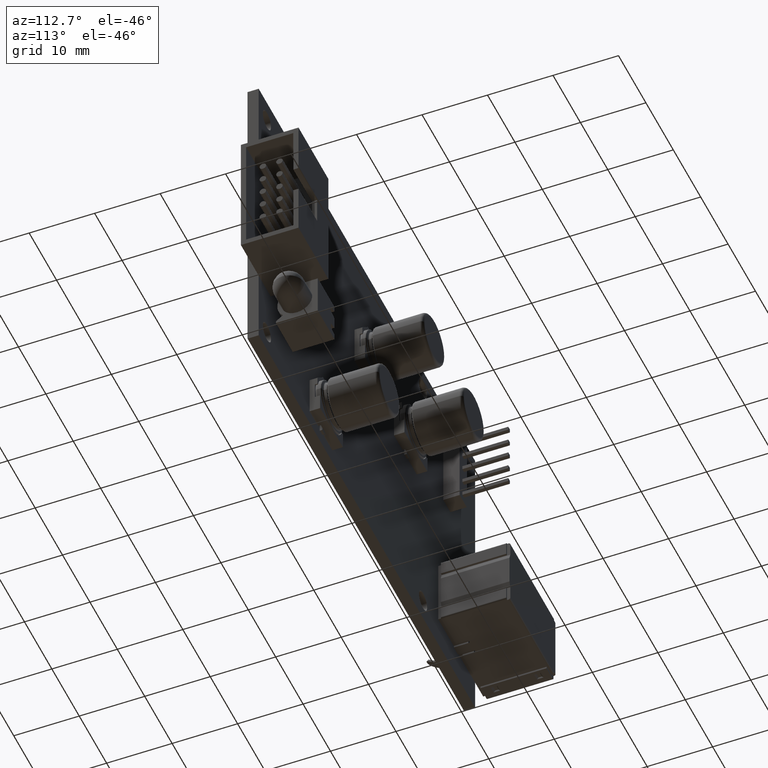
[diagram: clean part render]
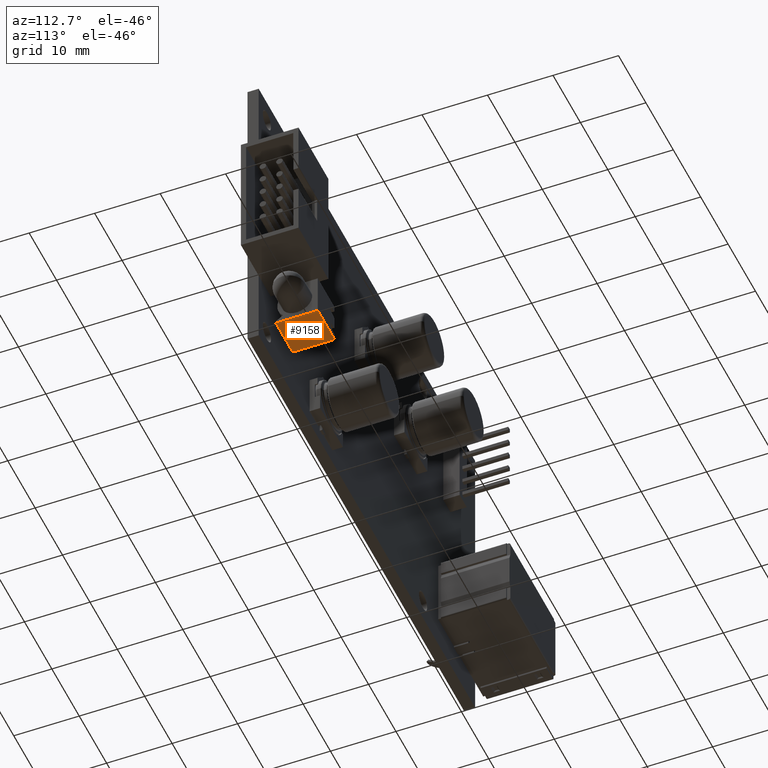
[diagram: same view with one face highlighted and labeled with its STEP entity id]
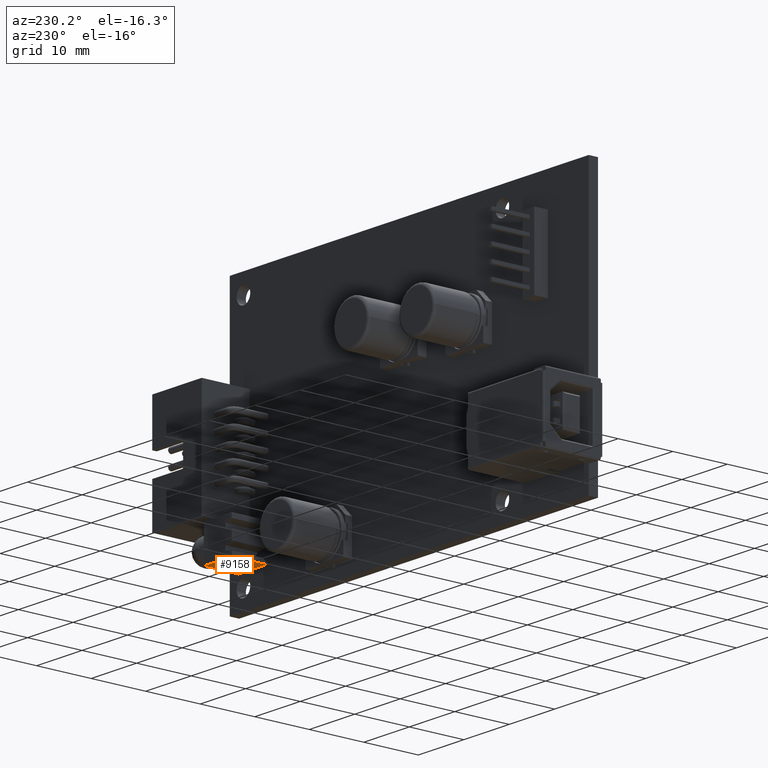
[diagram: same view with one face highlighted and labeled with its STEP entity id]
A machine part, auxiliary view. The second image highlights one B-rep face of the part: STEP entity #9158.
A second angle (auxiliary view) of the same face is appended — the face is thin or edge-on in the first view.
In plain terms, the highlighted planar face has unit normal (0, -0, 1).
Its self-contained STEP definition (entity closure, byte-faithful):
#138 = VECTOR ( 'NONE', #15478, 1000.000000000000000 ) ;
#750 = VECTOR ( 'NONE', #15581, 1000.000000000000000 ) ;
#1243 = AXIS2_PLACEMENT_3D ( 'NONE', #1448, #10468, #15446 ) ;
#1448 = CARTESIAN_POINT ( 'NONE',  ( 34.26324033284385700, 9.126700930004711100, -44.75000000001047300 ) ) ;
#2867 = VERTEX_POINT ( 'NONE', #3674 ) ;
#3674 = CARTESIAN_POINT ( 'NONE',  ( 34.26324033284385700, 9.126700930004711100, -44.75000000001047300 ) ) ;
#4023 = ORIENTED_EDGE ( 'NONE', *, *, #13991, .F. ) ;
#4156 = CARTESIAN_POINT ( 'NONE',  ( 28.11324033284386200, 2.726700930004710700, -44.75000000001046600 ) ) ;
#4315 = VECTOR ( 'NONE', #5310, 1000.000000000000000 ) ;
#4572 = CARTESIAN_POINT ( 'NONE',  ( 28.11324033284385800, 9.126700930004709300, -44.75000000001047300 ) ) ;
#4901 = LINE ( 'NONE', #5410, #4315 ) ;
#5310 = DIRECTION ( 'NONE',  ( -1.355252715606880500E-016, 1.000000000000000000, 6.776263578034402700E-017 ) ) ;
#5410 = CARTESIAN_POINT ( 'NONE',  ( 34.26324033284385700, 9.126700930004711100, -44.75000000001047300 ) ) ;
#5620 = DIRECTION ( 'NONE',  ( -1.000000000000000000, -1.355252715606880500E-016, -0.0000000000000000000 ) ) ;
#5733 = FACE_OUTER_BOUND ( 'NONE', #15911, .T. ) ;
#6472 = VECTOR ( 'NONE', #5620, 1000.000000000000000 ) ;
#6823 = VERTEX_POINT ( 'NONE', #4156 ) ;
#6872 = LINE ( 'NONE', #8264, #6472 ) ;
#6913 = LINE ( 'NONE', #15367, #138 ) ;
#8264 = CARTESIAN_POINT ( 'NONE',  ( 34.26324033284386400, 2.726700930004711600, -44.75000000001046600 ) ) ;
#9158 = ADVANCED_FACE ( 'NONE', ( #5733 ), #11715, .F. ) ;
#9356 = LINE ( 'NONE', #14266, #750 ) ;
#9879 = EDGE_CURVE ( 'NONE', #2867, #15700, #9356, .T. ) ;
#10468 = DIRECTION ( 'NONE',  ( 9.183549615799121200E-033, -6.776263578034402700E-017, 1.000000000000000000 ) ) ;
#11715 = PLANE ( 'NONE',  #1243 ) ;
#12362 = ORIENTED_EDGE ( 'NONE', *, *, #14565, .T. ) ;
#12469 = EDGE_CURVE ( 'NONE', #12744, #6823, #6872, .T. ) ;
#12744 = VERTEX_POINT ( 'NONE', #15126 ) ;
#12902 = ORIENTED_EDGE ( 'NONE', *, *, #12469, .T. ) ;
#13991 = EDGE_CURVE ( 'NONE', #12744, #2867, #4901, .T. ) ;
#14266 = CARTESIAN_POINT ( 'NONE',  ( 34.26324033284385700, 9.126700930004711100, -44.75000000001047300 ) ) ;
#14565 = EDGE_CURVE ( 'NONE', #6823, #15700, #6913, .T. ) ;
#15126 = CARTESIAN_POINT ( 'NONE',  ( 34.26324033284386400, 2.726700930004711600, -44.75000000001046600 ) ) ;
#15367 = CARTESIAN_POINT ( 'NONE',  ( 28.11324033284385800, 9.126700930004709300, -44.75000000001047300 ) ) ;
#15446 = DIRECTION ( 'NONE',  ( 1.355252715606880500E-016, -1.000000000000000000, -6.776263578034402700E-017 ) ) ;
#15478 = DIRECTION ( 'NONE',  ( -1.355252715606880500E-016, 1.000000000000000000, 6.776263578034402700E-017 ) ) ;
#15581 = DIRECTION ( 'NONE',  ( -1.000000000000000000, -1.355252715606880500E-016, -0.0000000000000000000 ) ) ;
#15700 = VERTEX_POINT ( 'NONE', #4572 ) ;
#15741 = ORIENTED_EDGE ( 'NONE', *, *, #9879, .F. ) ;
#15911 = EDGE_LOOP ( 'NONE', ( #12362, #15741, #4023, #12902 ) ) ;